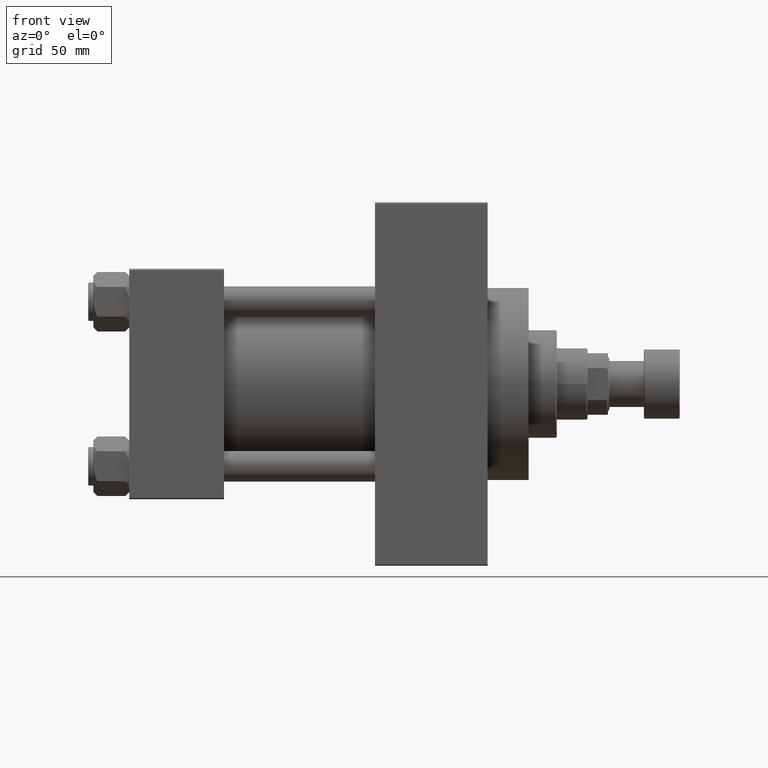
[diagram: clean part render]
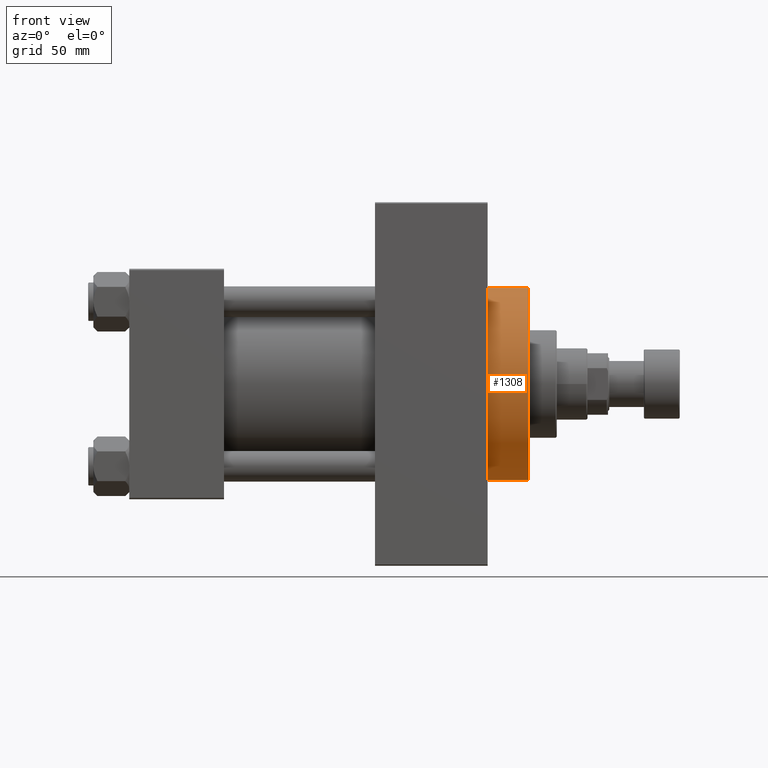
[diagram: same view with one face highlighted and labeled with its STEP entity id]
A machine part, front view. The second image highlights one B-rep face of the part: STEP entity #1308.
In plain terms, the highlighted cylindrical surface (partial cylindrical patch) has radius 37.5 mm, axis along (-1, -0, -0).
Its self-contained STEP definition (entity closure, byte-faithful):
#321 = DIRECTION ( 'NONE',  ( 1.000000000000000000, 0.000000000000000000, 0.000000000000000000 ) ) ;
#1308 = ADVANCED_FACE ( 'NONE', ( #6689 ), #6451, .T. ) ;
#1577 = EDGE_CURVE ( 'NONE', #19093, #21177, #38024, .T. ) ;
#2574 = VERTEX_POINT ( 'NONE', #15539 ) ;
#3802 = AXIS2_PLACEMENT_3D ( 'NONE', #33533, #37410, #14507 ) ;
#4683 = CIRCLE ( 'NONE', #3802, 37.50000000000000711 ) ;
#5496 = CIRCLE ( 'NONE', #34762, 37.50000000000000711 ) ;
#6451 = CYLINDRICAL_SURFACE ( 'NONE', #22342, 37.50000000000000711 ) ;
#6689 = FACE_OUTER_BOUND ( 'NONE', #17680, .T. ) ;
#7175 = EDGE_CURVE ( 'NONE', #16582, #21177, #5496, .T. ) ;
#9299 = DIRECTION ( 'NONE',  ( -1.000000000000000000, -0.000000000000000000, -0.000000000000000000 ) ) ;
#9352 = DIRECTION ( 'NONE',  ( -1.000000000000000000, -0.000000000000000000, -0.000000000000000000 ) ) ;
#11734 = EDGE_CURVE ( 'NONE', #2574, #16582, #16294, .T. ) ;
#14507 = DIRECTION ( 'NONE',  ( 0.000000000000000000, 0.000000000000000000, -1.000000000000000000 ) ) ;
#14618 = VECTOR ( 'NONE', #23532, 1000.000000000000000 ) ;
#15539 = CARTESIAN_POINT ( 'NONE',  ( 156.0000000000000284, 0.000000000000000000, 37.50000000000000711 ) ) ;
#16294 = LINE ( 'NONE', #42793, #14618 ) ;
#16582 = VERTEX_POINT ( 'NONE', #25047 ) ;
#17308 = CARTESIAN_POINT ( 'NONE',  ( 156.0000000000000284, 0.000000000000000000, 0.000000000000000000 ) ) ;
#17680 = EDGE_LOOP ( 'NONE', ( #43398, #42969, #37792, #41959 ) ) ;
#19093 = VERTEX_POINT ( 'NONE', #38893 ) ;
#21177 = VERTEX_POINT ( 'NONE', #25077 ) ;
#22342 = AXIS2_PLACEMENT_3D ( 'NONE', #17308, #9352, #46711 ) ;
#23532 = DIRECTION ( 'NONE',  ( -1.000000000000000000, -0.000000000000000000, -0.000000000000000000 ) ) ;
#24258 = CARTESIAN_POINT ( 'NONE',  ( 156.0000000000000284, 4.592425496802575156E-15, -37.50000000000000711 ) ) ;
#25047 = CARTESIAN_POINT ( 'NONE',  ( 140.0000000000000000, 0.000000000000000000, 37.50000000000000711 ) ) ;
#25077 = CARTESIAN_POINT ( 'NONE',  ( 140.0000000000000000, 4.592425496802575156E-15, -37.50000000000000711 ) ) ;
#33533 = CARTESIAN_POINT ( 'NONE',  ( 156.0000000000000284, 0.000000000000000000, 0.000000000000000000 ) ) ;
#33824 = DIRECTION ( 'NONE',  ( 0.000000000000000000, 0.000000000000000000, -1.000000000000000000 ) ) ;
#33896 = VECTOR ( 'NONE', #9299, 1000.000000000000000 ) ;
#34762 = AXIS2_PLACEMENT_3D ( 'NONE', #37946, #321, #33824 ) ;
#37410 = DIRECTION ( 'NONE',  ( 1.000000000000000000, 0.000000000000000000, 0.000000000000000000 ) ) ;
#37792 = ORIENTED_EDGE ( 'NONE', *, *, #11734, .T. ) ;
#37946 = CARTESIAN_POINT ( 'NONE',  ( 140.0000000000000000, 0.000000000000000000, 0.000000000000000000 ) ) ;
#38024 = LINE ( 'NONE', #24258, #33896 ) ;
#38653 = EDGE_CURVE ( 'NONE', #2574, #19093, #4683, .T. ) ;
#38893 = CARTESIAN_POINT ( 'NONE',  ( 156.0000000000000284, 4.592425496802575156E-15, -37.50000000000000711 ) ) ;
#41959 = ORIENTED_EDGE ( 'NONE', *, *, #7175, .T. ) ;
#42793 = CARTESIAN_POINT ( 'NONE',  ( 156.0000000000000284, 0.000000000000000000, 37.50000000000000711 ) ) ;
#42969 = ORIENTED_EDGE ( 'NONE', *, *, #38653, .F. ) ;
#43398 = ORIENTED_EDGE ( 'NONE', *, *, #1577, .F. ) ;
#46711 = DIRECTION ( 'NONE',  ( 0.000000000000000000, 0.000000000000000000, 1.000000000000000000 ) ) ;